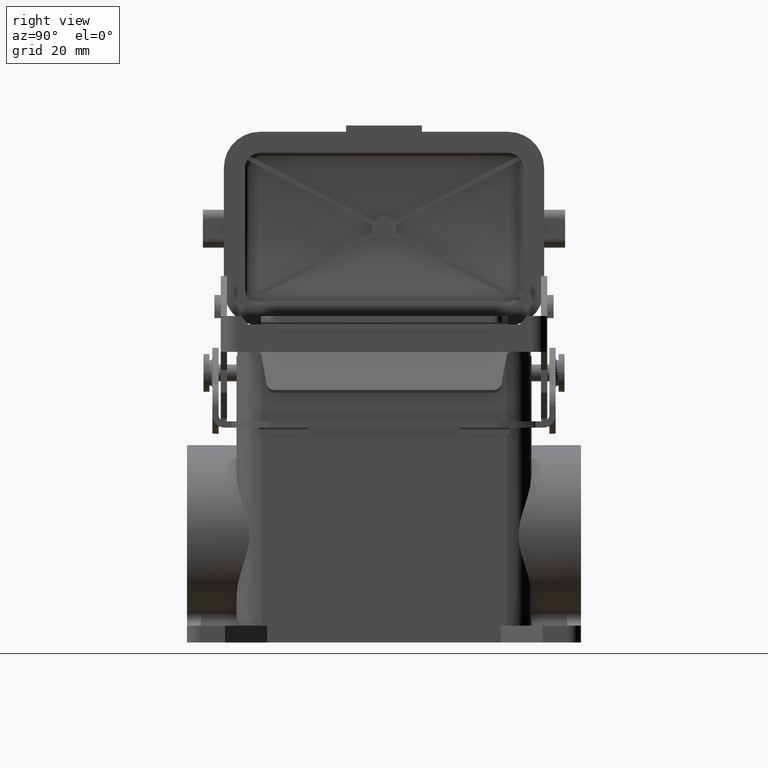
[diagram: clean part render]
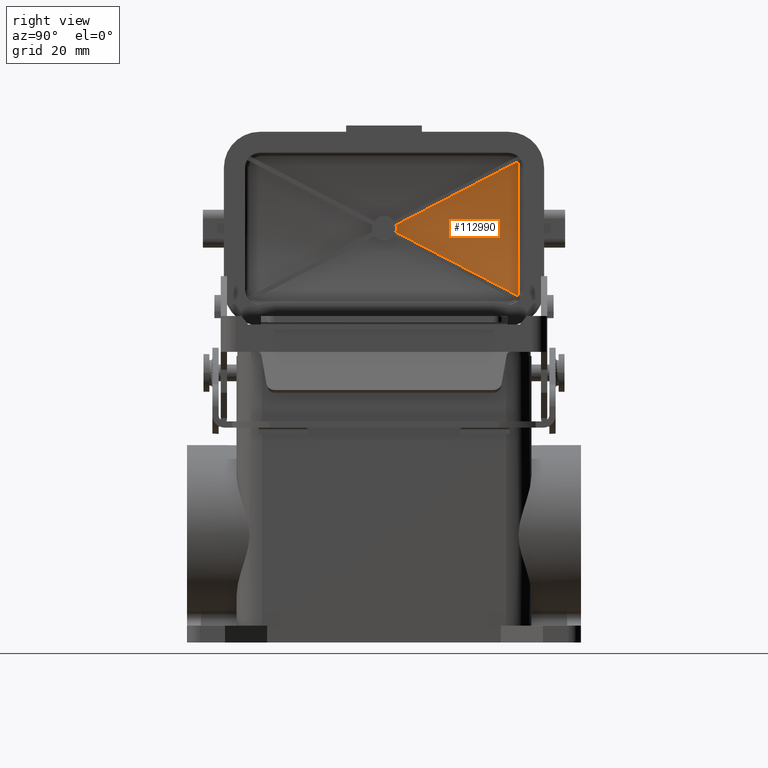
[diagram: same view with one face highlighted and labeled with its STEP entity id]
A machine part, right view. The second image highlights one B-rep face of the part: STEP entity #112990.
In plain terms, the highlighted cylindrical surface (partial cylindrical patch) has radius 99.3486 mm, axis along (0, 1, -0).
Its self-contained STEP definition (entity closure, byte-faithful):
#95770=CARTESIAN_POINT('',(-2.1316282072803E-14,-57.1486431583371,
34.2252838959567));
#95780=DIRECTION('',(1.,-1.23259516440783E-32,-1.11022302462516E-16));
#95790=DIRECTION('',(1.11022302462516E-16,1.11022302462516E-16,1.));
#95800=AXIS2_PLACEMENT_3D('',#95770,#95780,#95790);
#95810=CYLINDRICAL_SURFACE('',#95800,99.3486431583371);
#96240=CARTESIAN_POINT('',(1.18601069404122,-57.1486431583371,
34.2252838959567));
#96250=DIRECTION('',(-0.461748613235034,9.84779850086405E-17,
0.887010833178221));
#96260=DIRECTION('',(0.887010833178222,5.12643942002271E-17,
0.461748613235034));
#96270=AXIS2_PLACEMENT_3D('',#96240,#96250,#96260);
#96280=ELLIPSE('',#96270,215.157426163764,99.3486431583371);
#111140=CARTESIAN_POINT('',(2.82193815904546,42.1963499611985,
33.3736739605828));
#111150=VERTEX_POINT('',#111140);
#111180=CARTESIAN_POINT('',(1.18601069404117,-57.1486431583371,
34.2252838959567));
#111190=DIRECTION('',(-0.461748613235034,-9.84779850086405E-17,
-0.887010833178221));
#111200=DIRECTION('',(-0.887010833178222,5.12643942002271E-17,
0.461748613235034));
#111210=AXIS2_PLACEMENT_3D('',#111180,#111190,#111200);
#111220=ELLIPSE('',#111210,215.157426163764,99.3486431583371);
#111230=CARTESIAN_POINT('',(31.6840722960024,40.9232509364545,
18.3489979202782));
#111240=VERTEX_POINT('',#111230);
#111250=EDGE_CURVE('',#111150,#111240,#111220,.T.);
#111840=CARTESIAN_POINT('',(2.8219381590462,42.1963499611985,
35.0768938313281));
#111850=CARTESIAN_POINT('',(2.84275410446869,42.19694124727,
35.0079170518607));
#111860=CARTESIAN_POINT('',(2.86103952474903,42.1974671033119,
34.9381700843911));
#111870=CARTESIAN_POINT('',(2.87673015844982,42.1979214493615,
34.8679331400779));
#111880=CARTESIAN_POINT('',(2.88457593285241,42.1981486356354,
34.8328126197524));
#111890=CARTESIAN_POINT('',(2.89177165794799,42.1983579209356,
34.7975798987432));
#111900=CARTESIAN_POINT('',(2.89831843413686,42.1985489141757,
34.7622426558692));
#111910=CARTESIAN_POINT('',(2.9048666112662,42.1987399482864,
34.7268978512011));
#111920=CARTESIAN_POINT('',(2.91077050947195,42.1989128273887,
34.6914198498664));
#111930=CARTESIAN_POINT('',(2.91602339080862,42.1990670083438,
34.6558440424651));
#111940=CARTESIAN_POINT('',(2.92653049875851,42.1993754097403,
34.5846833166057));
#111950=CARTESIAN_POINT('',(2.93442710576612,42.1996087518682,
34.5131710249325));
#111960=CARTESIAN_POINT('',(2.9396993794424,42.1997647573844,
34.4414829107794));
#111970=CARTESIAN_POINT('',(2.94497234023525,42.1999207832322,
34.3697854537708));
#111980=CARTESIAN_POINT('',(2.94762067501985,42.1999994624388,
34.2979064640605));
#111990=CARTESIAN_POINT('',(2.94763870058005,42.1999999972507,
34.2260230489133));
#112000=CARTESIAN_POINT('',(2.94765672704322,42.2000005320895,
34.154136032832));
#112010=CARTESIAN_POINT('',(2.94504537256333,42.1999229499561,
34.082268691708));
#112020=CARTESIAN_POINT('',(2.93980670022006,42.1997679330425,
34.0105491273569));
#112030=CARTESIAN_POINT('',(2.93456764544098,42.1996129048123,
33.9388243273033));
#112040=CARTESIAN_POINT('',(2.92669707657647,42.1993803207224,
33.8672480127448));
#112050=CARTESIAN_POINT('',(2.91622693630862,42.199072982957,
33.7961045494681));
#112060=CARTESIAN_POINT('',(2.90576377063399,42.198765849922,
33.725008477793));
#112070=CARTESIAN_POINT('',(2.8926888998757,42.1983835960698,
33.6541931019786));
#112080=CARTESIAN_POINT('',(2.87696359879201,42.197928209254,
33.5836805085511));
#112090=CARTESIAN_POINT('',(2.8612428762534,42.1974729550276,
33.5131884454197));
#112100=CARTESIAN_POINT('',(2.84288686037783,42.1969450182599,
33.4430906468093));
#112110=CARTESIAN_POINT('',(2.8219381590458,42.1963499611985,
33.3736739605827));
#112120=B_SPLINE_CURVE_WITH_KNOTS('',3,(#111840,#111850,#111860,#111870,
#111880,#111890,#111900,#111910,#111920,#111930,#111940,#111950,#111960,
#111970,#111980,#111990,#112000,#112010,#112020,#112030,#112040,#112050,
#112060,#112070,#112080,#112090,#112100,#112110),.UNSPECIFIED.,.F.,.F.,(
4,3,3,3,3,3,3,3,3,4),(0.,0.216078966148604,0.323959574861294,
0.431828468851289,0.647542433955491,0.863196784937995,1.07886126444843,
1.29464767230895,1.5107212957112,1.72787187577151),.UNSPECIFIED.);
#112130=CARTESIAN_POINT('',(2.82193815904546,42.1963499611985,
35.0768938313305));
#112140=VERTEX_POINT('',#112130);
#112150=EDGE_CURVE('',#112140,#111150,#112120,.T.);
#112280=ORIENTED_EDGE('',*,*,#111250,.T.);
#112290=ORIENTED_EDGE('',*,*,#112150,.T.);
#112300=CARTESIAN_POINT('',(31.6840722960021,40.9232509364546,
50.1015698716349));
#112310=VERTEX_POINT('',#112300);
#112320=EDGE_CURVE('',#112310,#112140,#96280,.T.);
#112330=ORIENTED_EDGE('',*,*,#112320,.T.);
#112340=CARTESIAN_POINT('',(32.,41.114297744711,48.8727185685088));
#112350=CARTESIAN_POINT('',(32.000000004529,41.1084535686657,
48.9119244730376));
#112360=CARTESIAN_POINT('',(31.9990961648518,41.1025866306597,
48.951121160187));
#112370=CARTESIAN_POINT('',(31.9957208618796,41.0915907709368,
49.0242874057815));
#112380=CARTESIAN_POINT('',(31.9934712063792,41.0864663992398,
49.0582648831226));
#112390=CARTESIAN_POINT('',(31.9814751580678,41.0654423890204,
49.1971766264545));
#112400=CARTESIAN_POINT('',(31.9659099859087,41.0494799641482,
49.3015029768217));
#112410=CARTESIAN_POINT('',(31.9439388673751,41.0335510496873,
49.4045341376646));
#112420=CARTESIAN_POINT('',(31.9290563806794,41.0227613460507,
49.4743239336705));
#112430=CARTESIAN_POINT('',(31.9112534735863,41.0120007262755,
49.5434319703228));
#112440=CARTESIAN_POINT('',(31.8699124089624,40.9906061665567,
49.6799081300258));
#112450=CARTESIAN_POINT('',(31.8463742514315,40.9799722332097,
49.7472762541107));
#112460=CARTESIAN_POINT('',(31.76733499524,40.9483754344211,
49.9461572571069));
#112470=CARTESIAN_POINT('',(31.7035686582514,40.927775635046,
50.0740763923788));
#112480=CARTESIAN_POINT('',(31.5764250200682,40.8937712206744,
50.2828563005618));
#112490=CARTESIAN_POINT('',(31.5183088820294,40.8800308626037,
50.3664897787635));
#112500=CARTESIAN_POINT('',(31.4237802931,40.8601959651096,
50.4863413716141));
#112510=CARTESIAN_POINT('',(31.3910738140347,40.8537197208071,
50.5253221866551));
#112520=CARTESIAN_POINT('',(31.3233561607947,40.8410633035986,
50.6012359500318));
#112530=CARTESIAN_POINT('',(31.2883449866199,40.8348831332806,
50.6381688987987));
#112540=CARTESIAN_POINT('',(31.1876580268191,40.8181038852374,
50.7381151360965));
#112550=CARTESIAN_POINT('',(31.1196853977629,40.8078813317985,
50.7986229221428));
#112560=CARTESIAN_POINT('',(31.0486160468964,40.7982632723881,
50.8552715094626));
#112570=B_SPLINE_CURVE_WITH_KNOTS('',3,(#112340,#112350,#112360,#112370,
#112380,#112390,#112400,#112410,#112420,#112430,#112440,#112450,#112460,
#112470,#112480,#112490,#112500,#112510,#112520,#112530,#112540,#112550,
#112560),.UNSPECIFIED.,.F.,.F.,(4,2,2,3,2,2,2,2,2,2,4),(0.,
0.141403083798082,0.264204825529724,0.644218058903846,0.901629418218064,
1.15904077753228,1.67367100630607,2.04057882294168,2.22398163794407,
2.40738445294645,2.73532759744221),.UNSPECIFIED.);
#112580=CARTESIAN_POINT('',(32.,41.114297744711,48.8727185685088));
#112590=VERTEX_POINT('',#112580);
#112600=EDGE_CURVE('',#112590,#112310,#112570,.T.);
#112610=ORIENTED_EDGE('',*,*,#112600,.T.);
#112620=CARTESIAN_POINT('',(32.,-57.1486431583371,34.2252838959567));
#112630=DIRECTION('',(1.,-1.23259516440783E-32,-1.11022302462516E-16));
#112640=DIRECTION('',(-1.11022302462516E-16,-1.11022302462516E-16,-1.));
#112650=AXIS2_PLACEMENT_3D('',#112620,#112630,#112640);
#112660=CIRCLE('',#112650,99.3486431583371);
#112670=CARTESIAN_POINT('',(32.,41.114297744711,19.5778492234045));
#112680=VERTEX_POINT('',#112670);
#112690=EDGE_CURVE('',#112680,#112590,#112660,.T.);
#112700=ORIENTED_EDGE('',*,*,#112690,.T.);
#112710=CARTESIAN_POINT('',(32.,41.114297744711,19.5778492234045));
#112720=CARTESIAN_POINT('',(32.000000004529,41.1084535686657,
19.5386433188757));
#112730=CARTESIAN_POINT('',(31.9990961648518,41.1025866306597,
19.4994466317263));
#112740=CARTESIAN_POINT('',(31.9957208618796,41.091590770937,
19.4262803861327));
#112750=CARTESIAN_POINT('',(31.9934712063793,41.08646639924,
19.3923029087925));
#112760=CARTESIAN_POINT('',(31.9814751580681,41.0654423890207,
19.2533911654606));
#112770=CARTESIAN_POINT('',(31.9659099859089,41.0494799641483,
19.1490648150925));
#112780=CARTESIAN_POINT('',(31.9439388673751,41.0335510496872,
19.0460336542487));
#112790=CARTESIAN_POINT('',(31.9290563806796,41.0227613460508,
18.9762438582437));
#112800=CARTESIAN_POINT('',(31.9112534735868,41.0120007262758,
18.9071358215922));
#112810=CARTESIAN_POINT('',(31.8699124089634,40.9906061665572,
18.7706596618907));
#112820=CARTESIAN_POINT('',(31.8463742514329,40.9799722332103,
18.7032915378066));
#112830=CARTESIAN_POINT('',(31.7673349952428,40.9483754344221,
18.5044105348126));
#112840=CARTESIAN_POINT('',(31.7035686582553,40.9277756350472,
18.376491399542));
#112850=CARTESIAN_POINT('',(31.5764250200737,40.8937712206758,
18.1677114913599));
#112860=CARTESIAN_POINT('',(31.5183088820353,40.880030862605,
18.084078013158));
#112870=CARTESIAN_POINT('',(31.4237802931063,40.8601959651109,
17.964226420307));
#112880=CARTESIAN_POINT('',(31.3910738140412,40.8537197208084,
17.9252456052658));
#112890=CARTESIAN_POINT('',(31.3233561608015,40.8410633035999,
17.849331841889));
#112900=CARTESIAN_POINT('',(31.2883449866269,40.8348831332818,
17.8123988931218));
#112910=CARTESIAN_POINT('',(31.1876580268311,40.8181038852393,
17.7124526558282));
#112920=CARTESIAN_POINT('',(31.1196853977802,40.807881331801,
17.6519448697858));
#112930=CARTESIAN_POINT('',(31.0486160469195,40.7982632723913,
17.5952962824692));
#112940=B_SPLINE_CURVE_WITH_KNOTS('',3,(#112710,#112720,#112730,#112740,
#112750,#112760,#112770,#112780,#112790,#112800,#112810,#112820,#112830,
#112840,#112850,#112860,#112870,#112880,#112890,#112900,#112910,#112920,
#112930),.UNSPECIFIED.,.F.,.F.,(4,2,2,3,2,2,2,2,2,2,4),(0.,
0.141403083798109,0.264204825526683,0.644218058903945,0.901629418215126,
1.15904077752631,1.67367100629401,2.04057882292971,2.22398163793212,
2.40738445293452,2.73532759740665),.UNSPECIFIED.);
#112950=EDGE_CURVE('',#112680,#111240,#112940,.T.);
#112960=ORIENTED_EDGE('',*,*,#112950,.F.);
#112970=EDGE_LOOP('',(#112960,#112700,#112610,#112330,#112290,#112280));
#112980=FACE_OUTER_BOUND('',#112970,.T.);
#112990=ADVANCED_FACE('',(#112980),#95810,.F.);